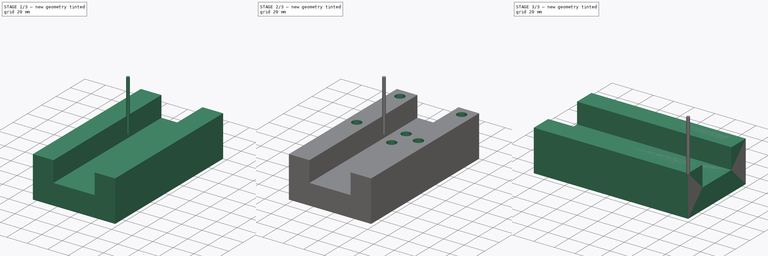
[diagram: build sequence overview — one tinted view per stage of 3, left to right]
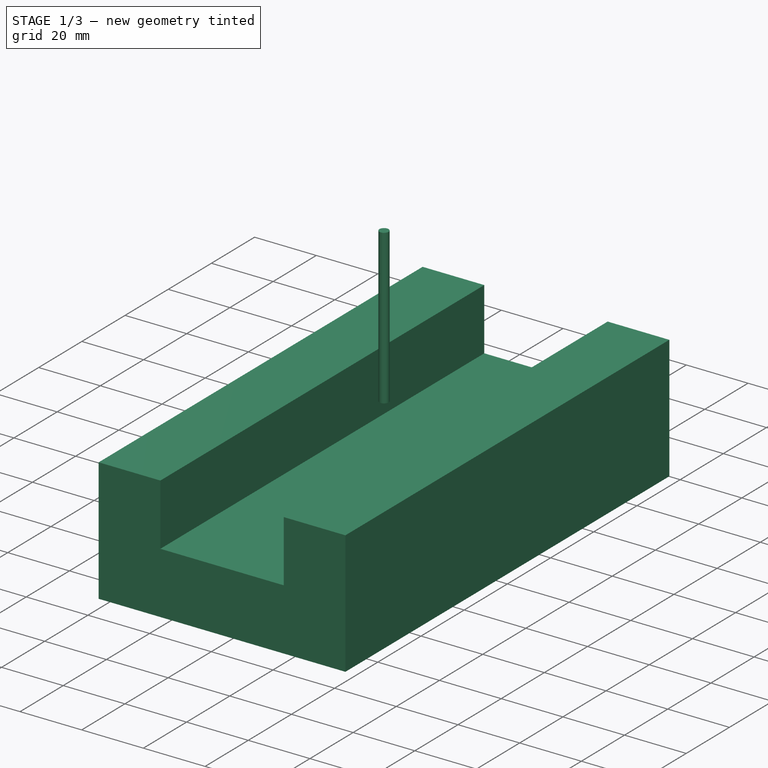
[diagram: stage 1 of 3 — iso view after this stage's code; geometry added in this stage tinted green]
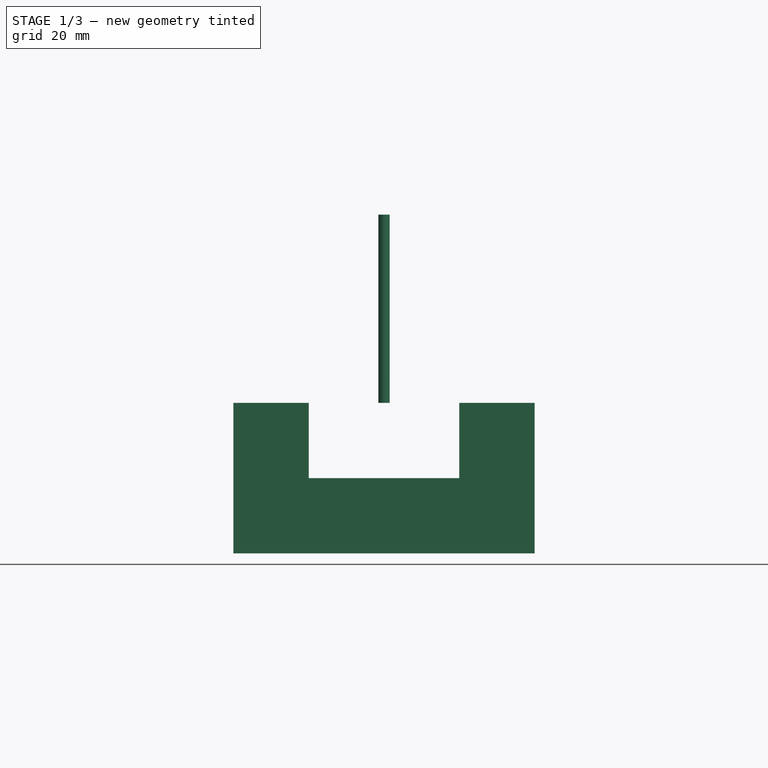
[diagram: stage 1 of 3 — front view after this stage's code; geometry added in this stage tinted green]
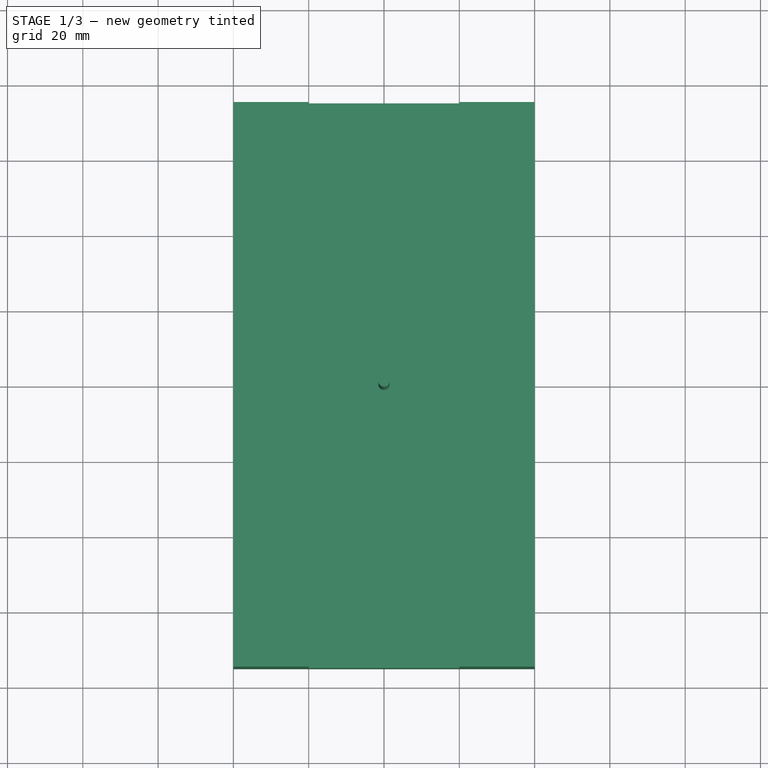
[diagram: stage 1 of 3 — top view after this stage's code; geometry added in this stage tinted green]
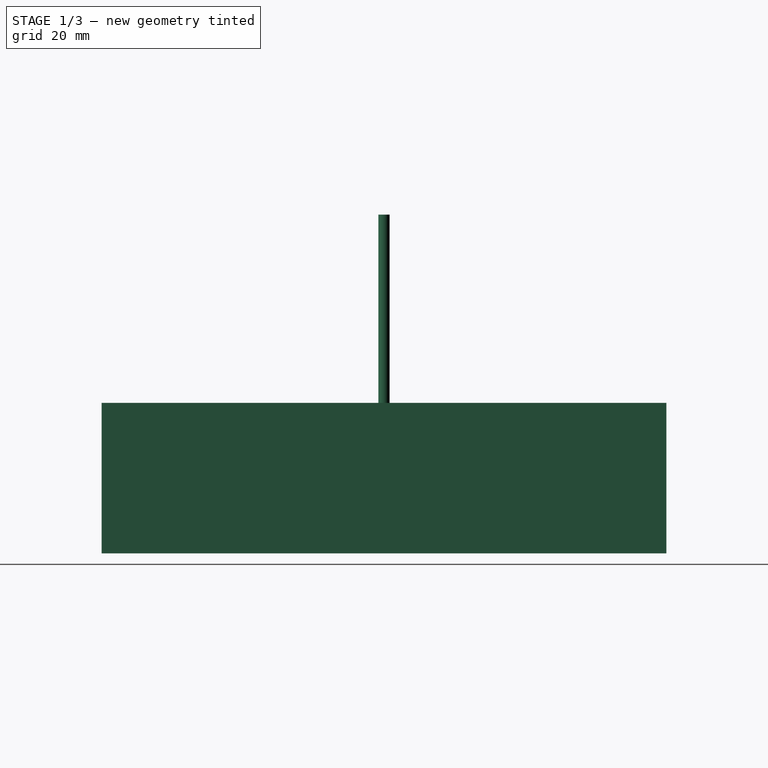
[diagram: stage 1 of 3 — right view after this stage's code; geometry added in this stage tinted green]
FCSTD DOCUMENT  (FreeCAD 0.21R33668 +26 (Git))
Label: Profile_40_80V_3mm
License: All rights reserved
LicenseURL: https://en.wikipedia.org/wiki/All_rights_reserved
objects: Path::FeaturePython×6, Sketcher::SketchObject×4, PartDesign::Pocket×3, Part::FeaturePython×3, App::DocumentObjectGroup×3, PartDesign::Pad×1, Spreadsheet::Sheet×1, App::FeaturePython×1, PartDesign::Body×1
note: 20 computed .brp shape members not serialized (recipe doc carries the construction recipe); baked Part::Feature solids carry a one-line shape summary decoded from their .brp

FEATURE [Sketcher::SketchObject] Sketch  label="Sketch_Profile"
  FullyConstrained = true
  MapMode = 5
  Placement = pos=(0,0,0) rot=(1,0,0;1.5708rad)
  Support = -> [XZ_Plane]
  expr: Constraints[16] = Spreadsheet.V_Slot
  expr: Constraints[3] = Spreadsheet.Width
  expr: Constraints[4] = Spreadsheet.Height
  sketch-geometry (8):
    g0: LineSegment StartX=40 StartY=-3.99e-14 StartZ=0 EndX=40 EndY=-40 EndZ=0
    g1: LineSegment StartX=40 StartY=-40 StartZ=0 EndX=-40 EndY=-40 EndZ=0
    g2: LineSegment StartX=-40 StartY=-40 StartZ=0 EndX=-40 EndY=4.26e-14 EndZ=0
    g3: LineSegment StartX=-40 StartY=3.99e-14 StartZ=0 EndX=-20 EndY=3.99e-14 EndZ=0
    g4: LineSegment StartX=-20 StartY=3.99e-14 StartZ=0 EndX=-20 EndY=-20 EndZ=0
    g5: LineSegment StartX=-20 StartY=-20 StartZ=0 EndX=20 EndY=-20 EndZ=0
    g6: LineSegment StartX=20 StartY=-20 StartZ=0 EndX=20 EndY=-3.91e-14 EndZ=0
    g7: LineSegment StartX=20 StartY=-3.99e-14 StartZ=0 EndX=40 EndY=-3.99e-14 EndZ=0
  constraints (23):
    c: Horizontal(g1)
    c: Vertical(g0)
    c: Vertical(g2)
    c: DistanceX(g2,g0) = 80
    c: DistanceY(g2,g2) = 40
    c: Symmetric(g2,g0,g-1)
    c: Coincident(g3,g2)
    c: Horizontal(g3)
    c: Vertical(g4)
    c: Horizontal(g5)
    c: Vertical(g6)
    c: Coincident(g7,g0)
    c: Horizontal(g7)
    c: Equal(g3,g4)
    c: Equal(g4,g6)
    c: Equal(g6,g7)
    c: DistanceX(g3,g3) = 20
    c: Coincident(g4,g3)
    c: Coincident(g4,g5)
    c: Coincident(g6,g7)
    c: Coincident(g6,g5)
    c: Coincident(g0,g1)
    c: Coincident(g1,g2)
FEATURE [PartDesign::Pad] Pad  label="Profile"
  Direction = (0,-1,-2e-16)
  Length = 150
  Length2 = 10
  Midplane = true
  Placement = pos=(0,0,0) rot=(1,0,0;1.5708rad)
  Profile = -> Sketch
  ReferenceAxis = -> Sketch [N_Axis]
  Type = 0
FEATURE [App::DocumentObjectGroup] Model
  Group = -> [Clone]
FEATURE [Part::FeaturePython] ToolBit  label="3mm Endmill"  # Path/CAM toolbit (typed FeaturePython)
  BitPropertyNames = Chipload | CuttingEdgeHeight | Diameter | Flutes | Length | Material | ShankDiameter | SpindleDirection
  BitShape = C:/Program Files/FreeCAD 0.21/Mod\Path\Tools\Shape\endmill.fcstd
  Chipload = 0
  CuttingEdgeHeight = 15
  Diameter = 3
  File = <userpath>/Desktop/CNC/ToolBit/Bit/3mm_Endmill.fctb
  Flutes = 0
  Length = 50
  Material = 0
  ShankDiameter = 3
  ShapeName = endmill
  SpindleDirection = 0
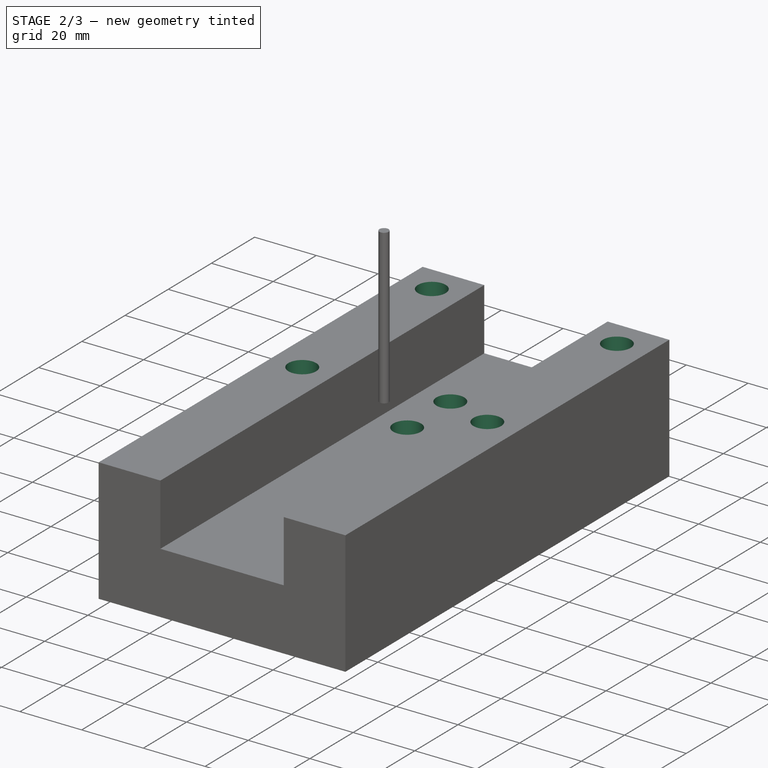
[diagram: stage 2 of 3 — iso view after this stage's code; geometry added in this stage tinted green]
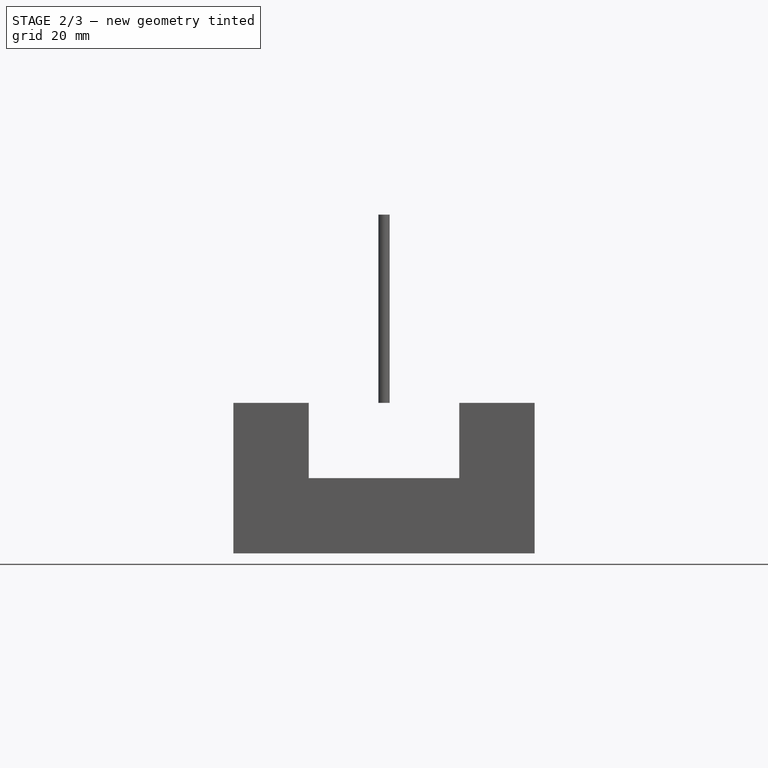
[diagram: stage 2 of 3 — front view after this stage's code; geometry added in this stage tinted green]
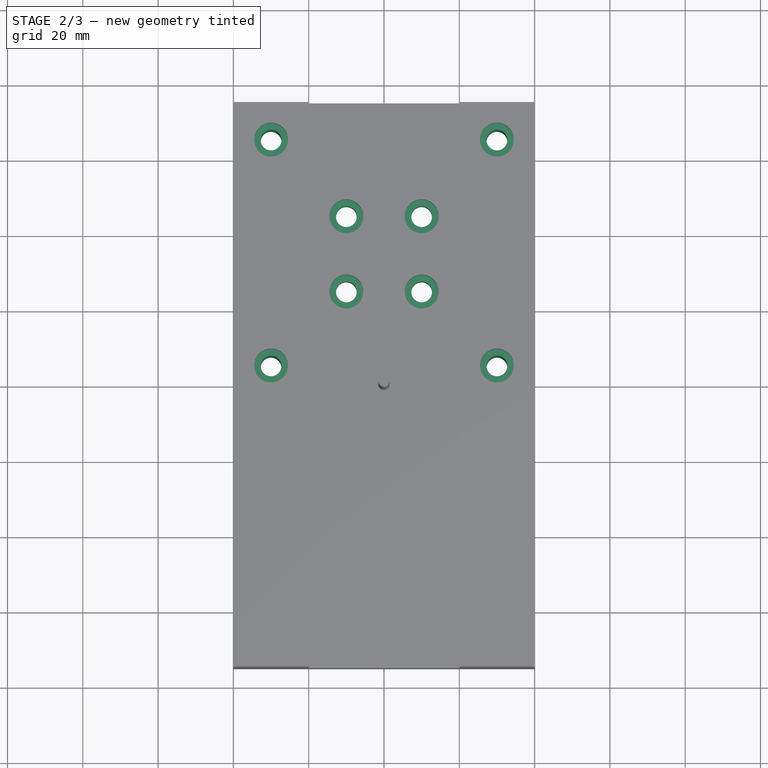
[diagram: stage 2 of 3 — top view after this stage's code; geometry added in this stage tinted green]
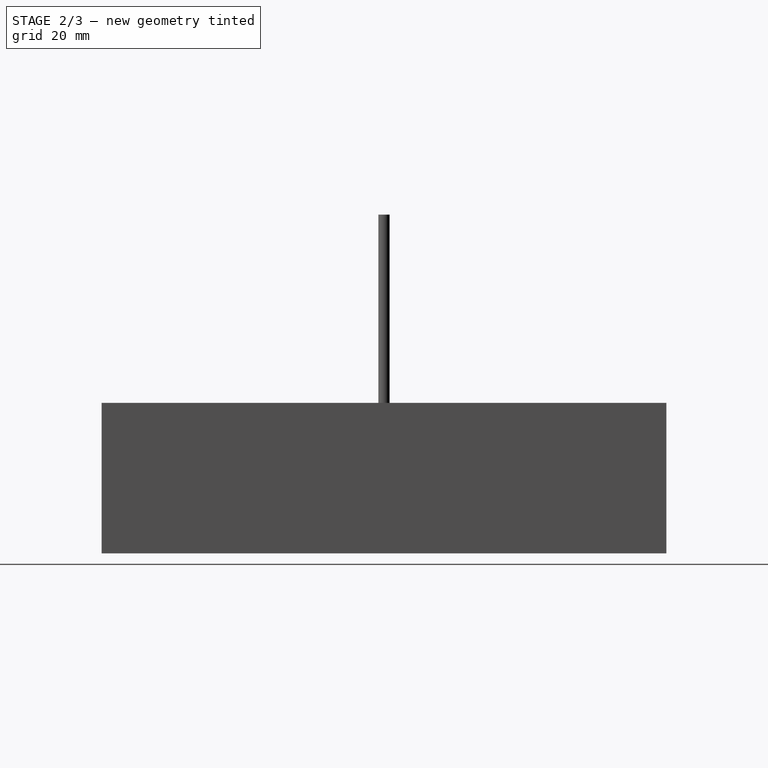
[diagram: stage 2 of 3 — right view after this stage's code; geometry added in this stage tinted green]
FEATURE [Spreadsheet::Sheet] Spreadsheet
  cells = A3='Height; B3(Height)=40; A4='Width; B4(Width)=80; A5='Slot_Height; B5(Slot_Height)=6.25; A7='V_Slot; B7(V_Slot)=20
FEATURE [App::FeaturePython] SetupSheet  # Path/CAM operation (typed FeaturePython)
  ClearanceHeightExpression = OpStockZMax+SetupSheet.ClearanceHeightOffset
  ClearanceHeightOffset = 15
  CoolantMode = 0
  CoolantModes = None | Flood | Mist
  FinalDepthExpression = OpFinalDepth
  HorizRapid = 6.66667
  SafeHeightExpression = OpStockZMax+SetupSheet.SafeHeightOffset
  SafeHeightOffset = 3
  StartDepthExpression = OpStartDepth
  StepDownExpression = OpToolDiameter
  VertRapid = 5
FEATURE [Sketcher::SketchObject] Sketch001
  ExternalGeometry = -> [Pad]
  FullyConstrained = true
  MapMode = 5
  Placement = pos=(0,0,3.99e-14) rot=(0,0,1;3.14159rad)
  Support = -> [Pad]
  expr: Constraints[0] = Spreadsheet.V_Slot / 2
  expr: Constraints[19] = Spreadsheet.V_Slot
  expr: Constraints[1] = Spreadsheet.V_Slot / 2
  expr: Constraints[20] = Spreadsheet.V_Slot
  expr: Constraints[22] = Spreadsheet.V_Slot
  expr: Constraints[23] = Spreadsheet.V_Slot
  expr: Constraints[7] = Spreadsheet.V_Slot * 3
  expr: Constraints[9] = Spreadsheet.V_Slot * 3
  sketch-geometry (8):
    g0: Circle CenterX=-30 CenterY=-65 CenterZ=0 NormalX=0 NormalY=0 NormalZ=1 AngleXU=0 Radius=2.75
    g1: Circle CenterX=30 CenterY=-65 CenterZ=0 NormalX=0 NormalY=0 NormalZ=1 AngleXU=0 Radius=2.75
    g2: Circle CenterX=-30 CenterY=-5 CenterZ=0 NormalX=0 NormalY=0 NormalZ=1 AngleXU=0 Radius=2.75
    g3: Circle CenterX=30 CenterY=-5 CenterZ=0 NormalX=0 NormalY=0 NormalZ=1 AngleXU=0 Radius=2.75
    g4: Circle CenterX=-10 CenterY=-25 CenterZ=0 NormalX=0 NormalY=0 NormalZ=1 AngleXU=0 Radius=2.75
    g5: Circle CenterX=10 CenterY=-25 CenterZ=0 NormalX=0 NormalY=0 NormalZ=1 AngleXU=0 Radius=2.75
    g6: Circle CenterX=-10 CenterY=-45 CenterZ=0 NormalX=0 NormalY=0 NormalZ=1 AngleXU=0 Radius=2.75
    g7: Circle CenterX=10 CenterY=-45 CenterZ=0 NormalX=0 NormalY=0 NormalZ=1 AngleXU=0 Radius=2.75
  constraints (24):
    c: DistanceY(g-3,g0) = 10
    c: DistanceX(g-3,g0) = 10
    c: Diameter(g0) = 5.5
    c: Equal(g0,g2)
    c: Equal(g2,g3)
    c: Equal(g3,g1)
    c: Vertical(g0,g2)
    c: DistanceY(g0,g2) = 60
    c: Horizontal(g3,g2)
    c: DistanceX(g0,g1) = 60
    c: Vertical(g3,g1)
    c: Horizontal(g0,g1)
    c: Equal(g0,g6)
    c: Equal(g6,g4)
    c: Equal(g4,g5)
    c: Equal(g5,g7)
    c: Horizontal(g6,g7)
    c: Vertical(g6,g4)
    c: Vertical(g7,g5)
    c: DistanceX(g6,g7) = 20
    c: DistanceY(g6,g4) = 20
    c: Horizontal(g4,g5)
    c: DistanceY(g0,g6) = 20
    c: DistanceX(g0,g6) = 20
FEATURE [PartDesign::Pocket] Pocket
  BaseFeature = -> Pad
  Direction = (0,2e-16,-1)
  Length = 5
  Length2 = 5
  Placement = pos=(0,0,0) rot=(1,0,0;1.5708rad)
  Profile = -> Sketch001
  ReferenceAxis = -> Sketch001 [N_Axis]
  Type = 1
FEATURE [Sketcher::SketchObject] Sketch002
  ExternalGeometry = -> [Pocket]
  FullyConstrained = true
  MapMode = 5
  Placement = pos=(0,0,3.99e-14) rot=(0,0,1;3.14159rad)
  Support = -> [Pocket]
  sketch-geometry (4):
    g0: Circle CenterX=-30 CenterY=-65 CenterZ=0 NormalX=0 NormalY=0 NormalZ=1 AngleXU=0 Radius=4.5
    g1: Circle CenterX=-30 CenterY=-5 CenterZ=0 NormalX=0 NormalY=0 NormalZ=1 AngleXU=0 Radius=4.5
    g2: Circle CenterX=30 CenterY=-5 CenterZ=0 NormalX=0 NormalY=0 NormalZ=1 AngleXU=0 Radius=4.5
    g3: Circle CenterX=30 CenterY=-65 CenterZ=0 NormalX=0 NormalY=0 NormalZ=1 AngleXU=0 Radius=4.5
  constraints (8):
    c: Coincident(g0,g-3)
    c: Coincident(g1,g-4)
    c: Coincident(g2,g-5)
    c: Coincident(g3,g-6)
    c: Equal(g0,g1)
    c: Equal(g0,g2)
    c: Equal(g0,g3)
    c: Diameter(g0) = 9
FEATURE [PartDesign::Pocket] Pocket001
  BaseFeature = -> Pocket
  Direction = (0,2e-16,-1)
  Length = 6.25
  Length2 = 5
  Placement = pos=(0,0,0) rot=(1,0,0;1.5708rad)
  Profile = -> Sketch002
  ReferenceAxis = -> Sketch002 [N_Axis]
  Type = 0
  expr: Length = Spreadsheet.Slot_Height
FEATURE [Sketcher::SketchObject] Sketch003
  ExternalGeometry = -> [Pocket001]
  FullyConstrained = true
  MapMode = 5
  Placement = pos=(0,4.4e-15,-20) rot=(0,0,1;3.14159rad)
  Support = -> [Pocket001]
  sketch-geometry (4):
    g0: Circle CenterX=-10 CenterY=-45 CenterZ=0 NormalX=0 NormalY=0 NormalZ=1 AngleXU=0 Radius=4.5
    g1: Circle CenterX=-10 CenterY=-25 CenterZ=0 NormalX=0 NormalY=0 NormalZ=1 AngleXU=0 Radius=4.5
    g2: Circle CenterX=10 CenterY=-25 CenterZ=0 NormalX=0 NormalY=0 NormalZ=1 AngleXU=0 Radius=4.5
    g3: Circle CenterX=10 CenterY=-45 CenterZ=0 NormalX=0 NormalY=0 NormalZ=1 AngleXU=0 Radius=4.5
  constraints (8):
    c: Coincident(g0,g-5)
    c: Coincident(g1,g-3)
    c: Coincident(g2,g-4)
    c: Coincident(g3,g-6)
    c: Equal(g0,g1)
    c: Equal(g0,g2)
    c: Equal(g0,g3)
    c: Diameter(g0) = 9
FEATURE [PartDesign::Pocket] Pocket002
  BaseFeature = -> Pocket001
  Direction = (0,2e-16,-1)
  Length = 6.25
  Length2 = 5
  Placement = pos=(0,0,0) rot=(1,0,0;1.5708rad)
  Profile = -> Sketch003
  ReferenceAxis = -> Sketch003 [N_Axis]
  Type = 0
  expr: Length = Spreadsheet.Slot_Height
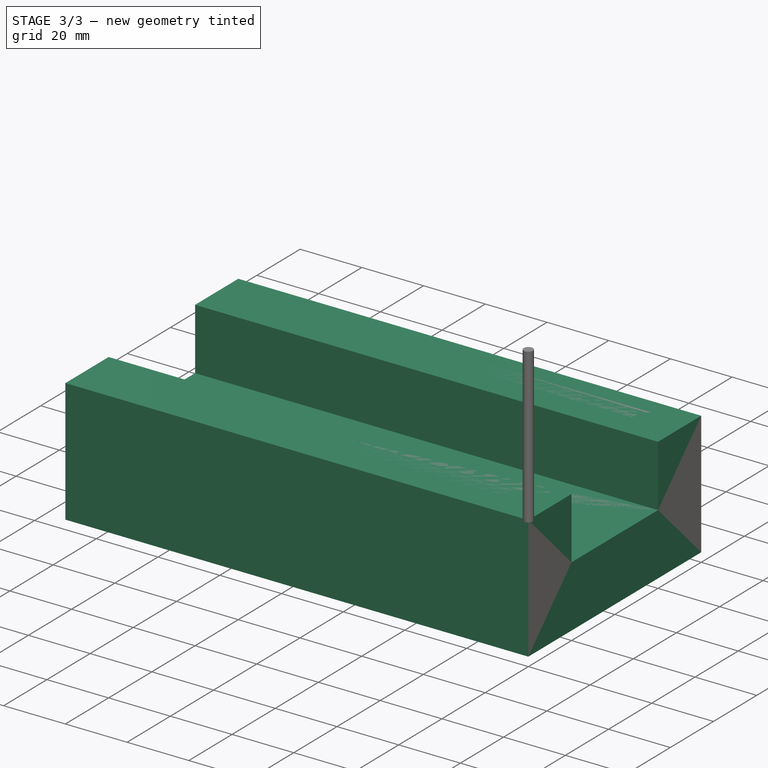
[diagram: stage 3 of 3 — iso view after this stage's code; geometry added in this stage tinted green]
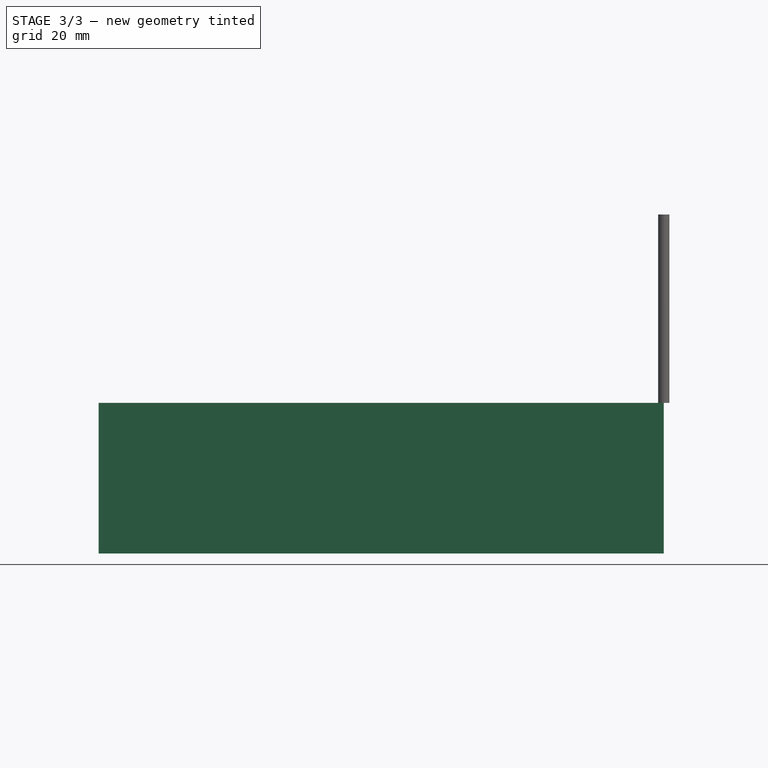
[diagram: stage 3 of 3 — front view after this stage's code; geometry added in this stage tinted green]
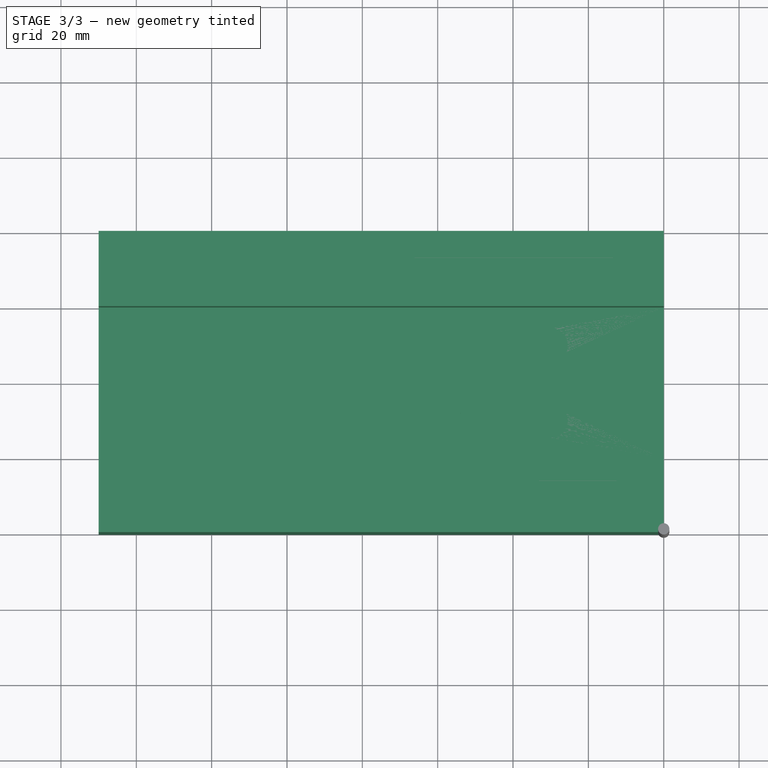
[diagram: stage 3 of 3 — top view after this stage's code; geometry added in this stage tinted green]
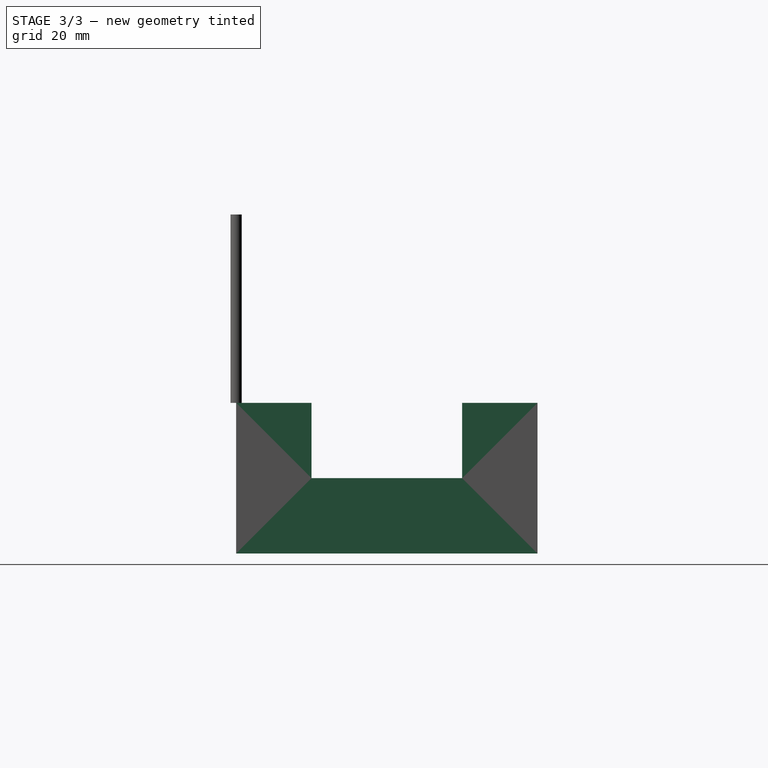
[diagram: stage 3 of 3 — right view after this stage's code; geometry added in this stage tinted green]
FEATURE [PartDesign::Body] Body  label="Profile_with_Hole_5.5mm"
  Group = -> [Sketch,Pad,Sketch001,Pocket,Sketch002,Pocket001,Sketch003,Pocket002]
  Origin = -> Origin
  Tip = -> Pocket002
FEATURE [Part::FeaturePython] Clone  label="Model-Profile_with_Hole_6mm"  # Draft clone (typed FeaturePython)
  AttacherType = Attacher::AttachEngine3D
  Fuse = false
  Objects = -> [Body]
  PathResource = Model
  Placement = pos=(-75,40,3.88e-14) rot=(0,0,1;4.71239rad)
  Scale = (1,1,1)
FEATURE [Path::FeaturePython] _mm_Endmill001  label="3mm Endmill001"  # Path/CAM operation (typed FeaturePython)
  HorizFeed = 7
  HorizRapid = 6.66667
  SpindleDir = 0
  SpindleSpeed = 8000
  Tool = -> ToolBit
  ToolNumber = 3
  VertFeed = 7
  VertRapid = 5
  expr: HorizRapid = SetupSheet.HorizRapid
  expr: VertRapid = SetupSheet.VertRapid
FEATURE [App::DocumentObjectGroup] Tools
  Group = -> [_mm_Endmill001]
FEATURE [Path::FeaturePython] Adaptive  label="Adaptive_OUTSIDE_CTBR"  # Path/CAM operation (typed FeaturePython)
  Active = true
  Base = -> [Clone]
  ClearanceHeight = 15
  CoolantMode = 0
  CycleTime = 00:07:33
  ExtensionCorners = true
  ExtensionLengthDefault = 1.5
  FinalDepth = -6.25
  FinishDepth = 0
  FinishingProfile = true
  ForceInsideOut = true
  HelixAngle = 5
  HelixConeAngle = 0
  HelixDiameterLimit = 0
  KeepToolDownRatio = 3
  LiftDistance = 0
  OpFinalDepth = -6.25
  OpStartDepth = 8.53e-14
  OpStockZMax = 8.12e-14
  OpStockZMin = -40
  OpToolDiameter = 3
  OperationType = 0
  SafeHeight = 3
  Side = 1
  StartDepth = 8.53e-14
  StepDown = 3
  StepOver = 20
  StockToLeave = 0
  StopProcessing = false
  Stopped = false
  Tolerance = 0.1
  ToolController = -> _mm_Endmill001
  UseHelixArcs = false
  UseOutline = true
  expr: ClearanceHeight = OpStockZMax + SetupSheet.ClearanceHeightOffset
  expr: ExtensionLengthDefault = OpToolDiameter / 2
  expr: FinalDepth = OpFinalDepth
  expr: SafeHeight = OpStockZMax + SetupSheet.SafeHeightOffset
  expr: StartDepth = OpStartDepth
  expr: StepDown = OpToolDiameter
FEATURE [Path::FeaturePython] Adaptive001  label="Adaptive_INSIDE_CTBR"  # Path/CAM operation (typed FeaturePython)
  Active = true
  Base = -> [Clone]
  ClearanceHeight = 15
  CoolantMode = 0
  CycleTime = 00:08:56
  ExtensionCorners = true
  ExtensionLengthDefault = 1.5
  FinalDepth = -26.25
  FinishDepth = 0
  FinishingProfile = true
  ForceInsideOut = true
  HelixAngle = 5
  HelixConeAngle = 0
  HelixDiameterLimit = 0
  KeepToolDownRatio = 3
  LiftDistance = 0
  OpFinalDepth = -26.25
  OpStartDepth = 8.53e-14
  OpStockZMax = 8.12e-14
  OpStockZMin = -40
  OpToolDiameter = 3
  OperationType = 0
  SafeHeight = 3
  Side = 1
  StartDepth = -20
  StepDown = 3
  StepOver = 20
  StockToLeave = 0
  StopProcessing = false
  Stopped = false
  Tolerance = 0.1
  ToolController = -> _mm_Endmill001
  UseHelixArcs = false
  UseOutline = true
  expr: ClearanceHeight = OpStockZMax + SetupSheet.ClearanceHeightOffset
  expr: ExtensionLengthDefault = OpToolDiameter / 2
  expr: SafeHeight = OpStockZMax + SetupSheet.SafeHeightOffset
  expr: StepDown = OpToolDiameter
FEATURE [Path::FeaturePython] Adaptive002  label="Adaptive_OUTSIDE_HL"  # Path/CAM operation (typed FeaturePython)
  Active = true
  Base = -> [Clone]
  ClearanceHeight = 15
  CoolantMode = 0
  CycleTime = 00:22:23
  ExtensionCorners = true
  ExtensionLengthDefault = 1.5
  FinalDepth = -33.75
  FinishDepth = 0
  FinishingProfile = true
  ForceInsideOut = false
  HelixAngle = 5
  HelixConeAngle = 0
  HelixDiameterLimit = 1
  KeepToolDownRatio = 3
  LiftDistance = 0
  OpFinalDepth = -40
  OpStartDepth = 8.64e-14
  OpStockZMax = 8.12e-14
  OpStockZMin = -40
  OpToolDiameter = 3
  OperationType = 0
  SafeHeight = 3
  Side = 1
  StartDepth = -6.25
  StepDown = 3
  StepOver = 20
  StockToLeave = 0
  StopProcessing = false
  Stopped = false
  Tolerance = 0.1
  ToolController = -> _mm_Endmill001
  UseHelixArcs = false
  UseOutline = true
  expr: ClearanceHeight = OpStockZMax + SetupSheet.ClearanceHeightOffset
  expr: ExtensionLengthDefault = OpToolDiameter / 2
  expr: FinalDepth = -40 + Spreadsheet.Slot_Height
  expr: SafeHeight = OpStockZMax + SetupSheet.SafeHeightOffset
  expr: StepDown = OpToolDiameter
FEATURE [Part::FeaturePython] Clone022  label="Stock-Profile"  # Draft clone (typed FeaturePython)
  AttacherType = Attacher::AttachEngine3D
  Fuse = false
  Objects = -> [Pad]
  PathResource = Stock
  Placement = pos=(-75,40,2.32e-14) rot=(0.57735,-0.57735,-0.57735;2.0944rad)
  Scale = (1,1,1)
  StockType = Unknown
FEATURE [Path::FeaturePython] Adaptive003  label="Adaptive_INSIDE_HL"  # Path/CAM operation (typed FeaturePython)
  Active = true
  Base = -> [Clone]
  ClearanceHeight = 15
  CoolantMode = 0
  CycleTime = 00:05:57
  ExtensionCorners = true
  ExtensionLengthDefault = 1.5
  FinalDepth = -33.75
  FinishDepth = 0
  FinishingProfile = true
  ForceInsideOut = false
  HelixAngle = 5
  HelixConeAngle = 0
  HelixDiameterLimit = 1
  KeepToolDownRatio = 3
  LiftDistance = 0
  OpFinalDepth = -40
  OpStartDepth = 8.64e-14
  OpStockZMax = 8.12e-14
  OpStockZMin = -40
  OpToolDiameter = 3
  OperationType = 0
  SafeHeight = 3
  Side = 1
  StartDepth = -26.25
  StepDown = 3
  StepOver = 20
  StockToLeave = 0
  StopProcessing = false
  Stopped = false
  Tolerance = 0.1
  ToolController = -> _mm_Endmill001
  UseHelixArcs = false
  UseOutline = true
  expr: ClearanceHeight = OpStockZMax + SetupSheet.ClearanceHeightOffset
  expr: ExtensionLengthDefault = OpToolDiameter / 2
  expr: FinalDepth = -40 + Spreadsheet.Slot_Height
  expr: SafeHeight = OpStockZMax + SetupSheet.SafeHeightOffset
  expr: StepDown = OpToolDiameter
FEATURE [App::DocumentObjectGroup] Operations
  Group = -> [Adaptive,Adaptive001,Adaptive002,Adaptive003]
FEATURE [Path::FeaturePython] Job  # Path/CAM operation (typed FeaturePython)
  CycleTime = 00:44:49
  Fixtures = G54
  GeometryTolerance = 0.01
  JobType = 0
  LastPostProcessDate = 2024-01-29 22:42:23.002186
  LastPostProcessOutput = <userpath>\Desktop\CNC\FC_CNC_Template\Profile_40_80V_3mm.nc
  Model = -> Model
  Operations = -> Operations
  OrderOutputBy = 0
  PostProcessor = 10
  PostProcessorArgs = --bcnc --no-translate_drill
  PostProcessorOutputFile = <userpath>/Desktop/CNC/FC_CNC_Template/Profile_40_80V_3mm.nc
  SetupSheet = -> SetupSheet
  SplitOutput = false
  Stock = -> Clone022
  Tools = -> Tools
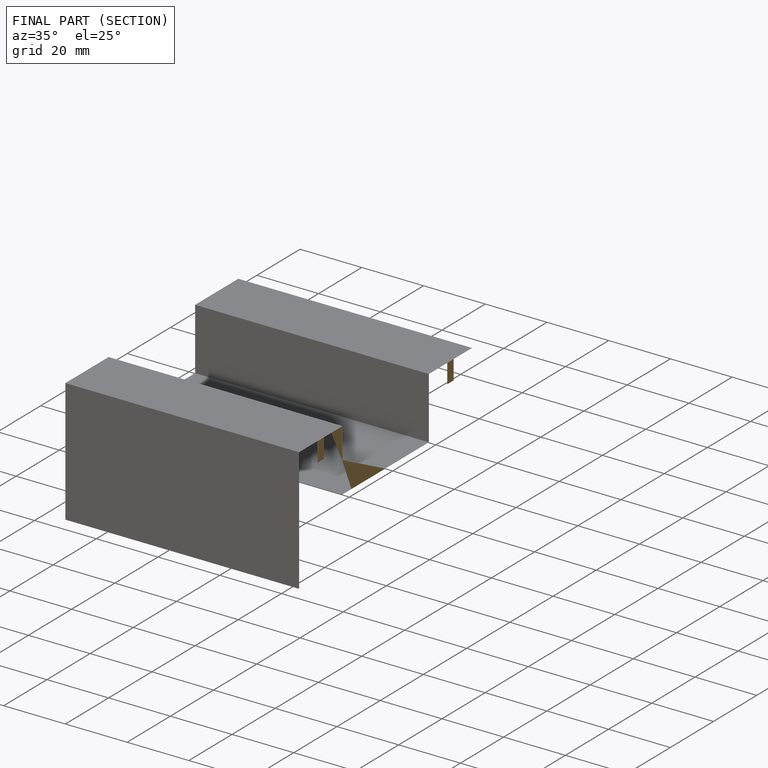
[diagram: finished part — half-section view (interior)]
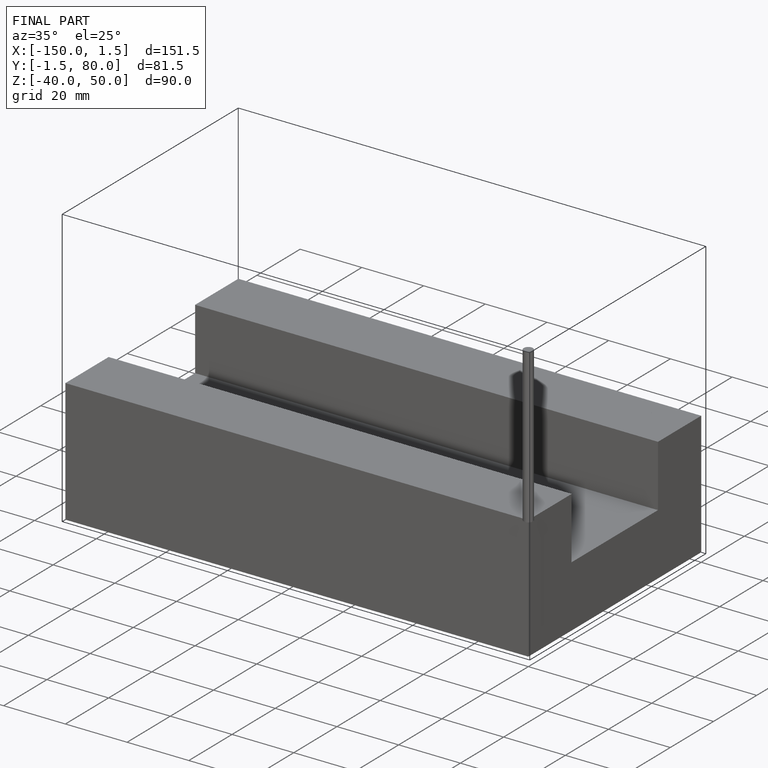
[diagram: finished part — iso view with bounding-box wireframe]
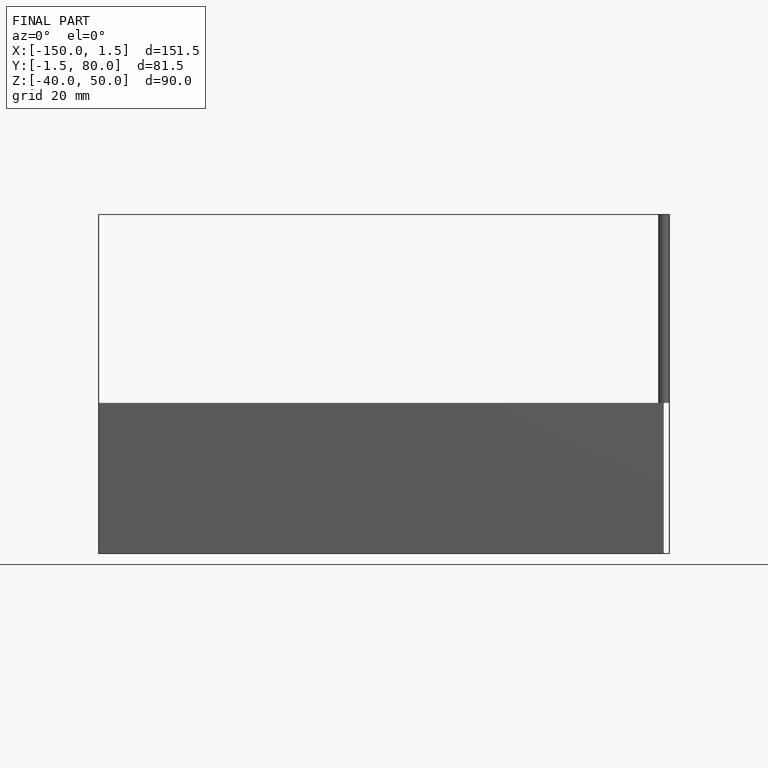
[diagram: finished part — front view with bounding-box wireframe]
